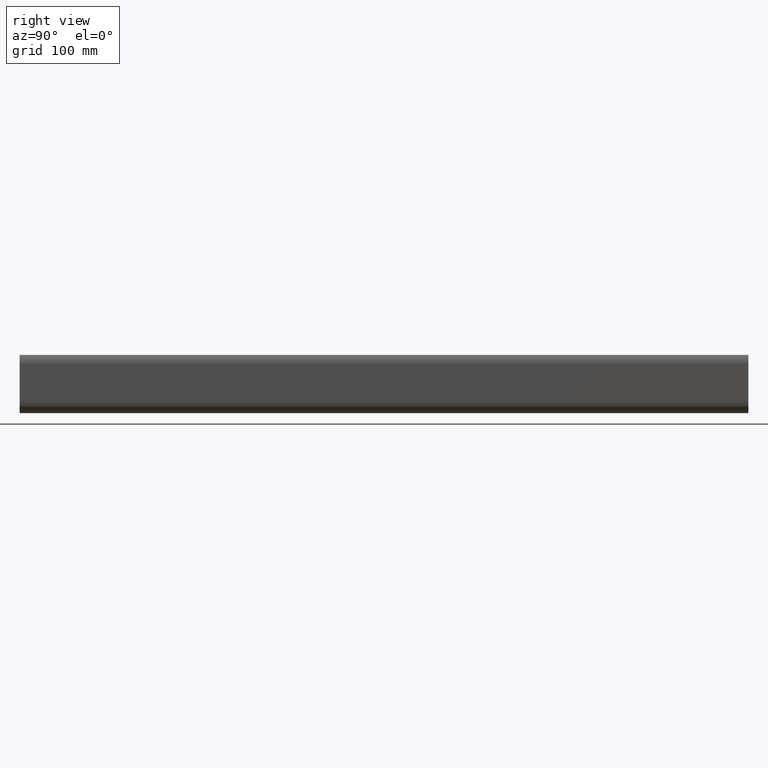
[diagram: clean part render]
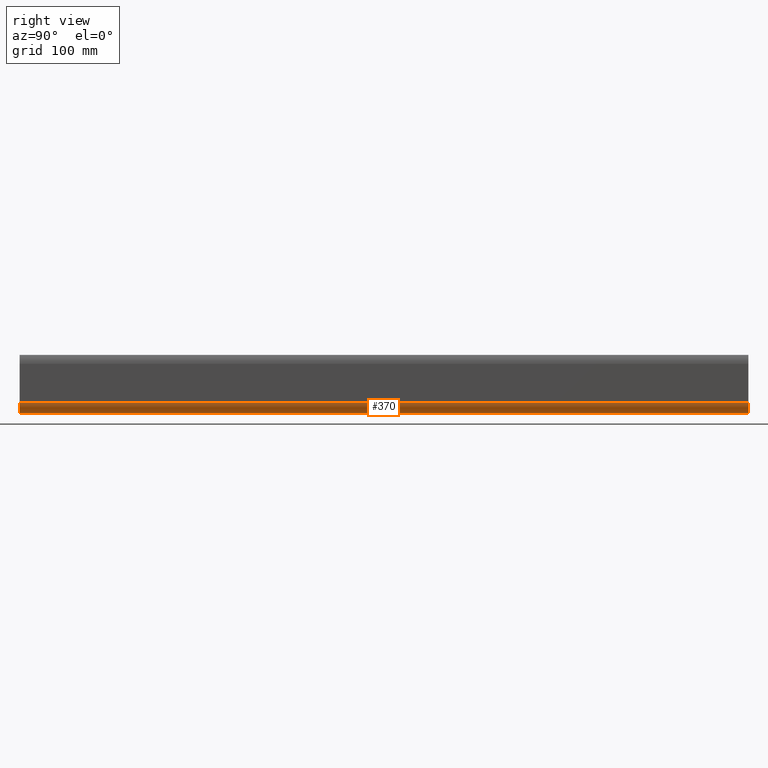
[diagram: same view with one face highlighted and labeled with its STEP entity id]
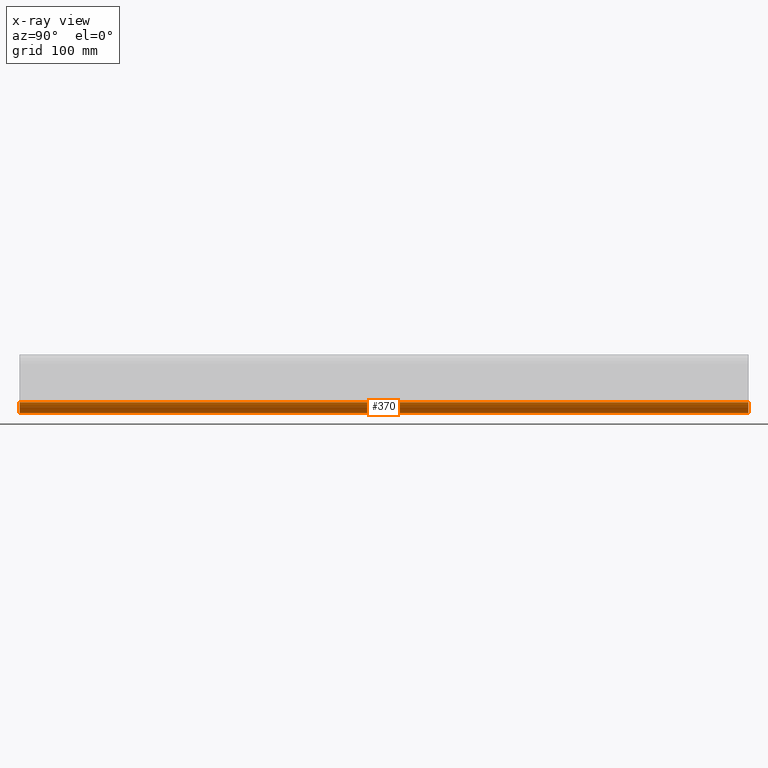
[diagram: x-ray of the same camera — body ghosted, the highlighted face saturated]
A machine part, right view. The second image highlights one B-rep face of the part: STEP entity #370.
The next image is the same camera in x-ray: the body ghosted, the highlighted face saturated — about 0% of this face is hidden behind the body in this view.
In plain terms, the highlighted cylindrical surface (edge-blend (fillet) strip) has radius 15 mm, axis along (0, 1, 0).
Its self-contained STEP definition (entity closure, byte-faithful):
#33=FACE_OUTER_BOUND('',#53,.T.);
#53=EDGE_LOOP('',(#272,#273,#274,#275));
#79=LINE('',#608,#111);
#80=LINE('',#614,#112);
#111=VECTOR('',#492,10.);
#112=VECTOR('',#499,10.);
#142=CIRCLE('',#421,15.);
#143=CIRCLE('',#422,15.);
#168=VERTEX_POINT('',#604);
#169=VERTEX_POINT('',#606);
#170=VERTEX_POINT('',#610);
#171=VERTEX_POINT('',#612);
#211=EDGE_CURVE('',#168,#169,#79,.T.);
#212=EDGE_CURVE('',#170,#168,#142,.T.);
#213=EDGE_CURVE('',#171,#169,#143,.T.);
#214=EDGE_CURVE('',#170,#171,#80,.T.);
#272=ORIENTED_EDGE('',*,*,#212,.T.);
#273=ORIENTED_EDGE('',*,*,#211,.T.);
#274=ORIENTED_EDGE('',*,*,#213,.F.);
#275=ORIENTED_EDGE('',*,*,#214,.F.);
#357=CYLINDRICAL_SURFACE('',#420,15.);
#370=ADVANCED_FACE('',(#33),#357,.T.);
#420=AXIS2_PLACEMENT_3D('',#609,#493,#494);
#421=AXIS2_PLACEMENT_3D('',#611,#495,#496);
#422=AXIS2_PLACEMENT_3D('',#613,#497,#498);
#492=DIRECTION('',(0.,1.,0.));
#493=DIRECTION('center_axis',(0.,1.,0.));
#494=DIRECTION('ref_axis',(1.,0.,-3.67394039744206E-16));
#495=DIRECTION('center_axis',(0.,1.,0.));
#496=DIRECTION('ref_axis',(1.,0.,-3.67394039744206E-16));
#497=DIRECTION('center_axis',(0.,1.,0.));
#498=DIRECTION('ref_axis',(1.,0.,-3.67394039744206E-16));
#499=DIRECTION('',(0.,1.,0.));
#604=CARTESIAN_POINT('',(-15.,0.,3.67394039744206E-15));
#606=CARTESIAN_POINT('',(-15.,1000.,4.44089209850063E-15));
#608=CARTESIAN_POINT('',(-15.,0.,3.67394039744206E-15));
#609=CARTESIAN_POINT('Origin',(0.,0.,0.));
#610=CARTESIAN_POINT('',(15.,0.,-5.51091059616309E-15));
#611=CARTESIAN_POINT('Origin',(0.,0.,0.));
#612=CARTESIAN_POINT('',(15.,1000.,-4.44089209850063E-15));
#613=CARTESIAN_POINT('Origin',(0.,1000.,0.));
#614=CARTESIAN_POINT('',(15.,0.,-5.51091059616309E-15));